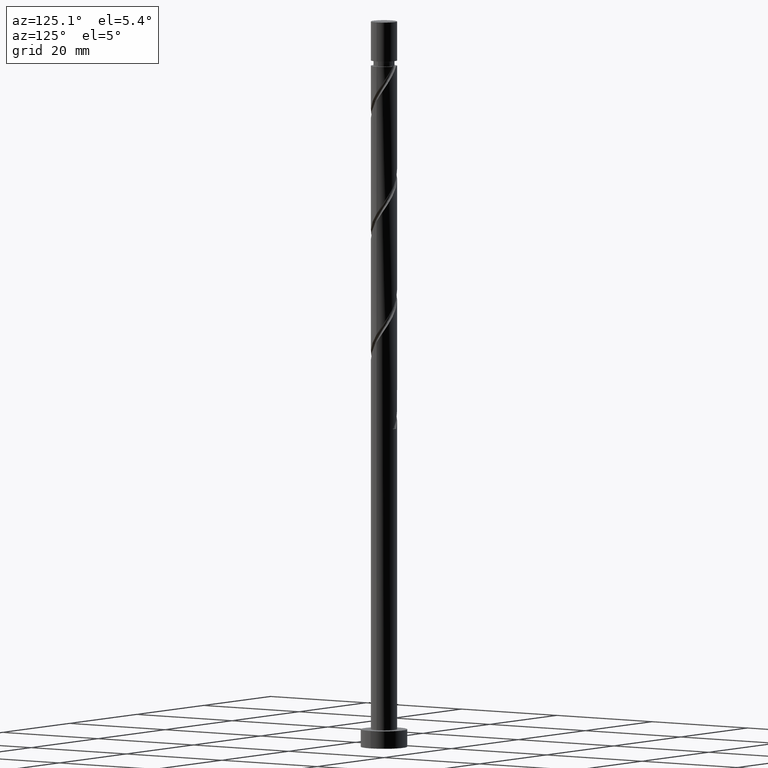
[diagram: clean part render]
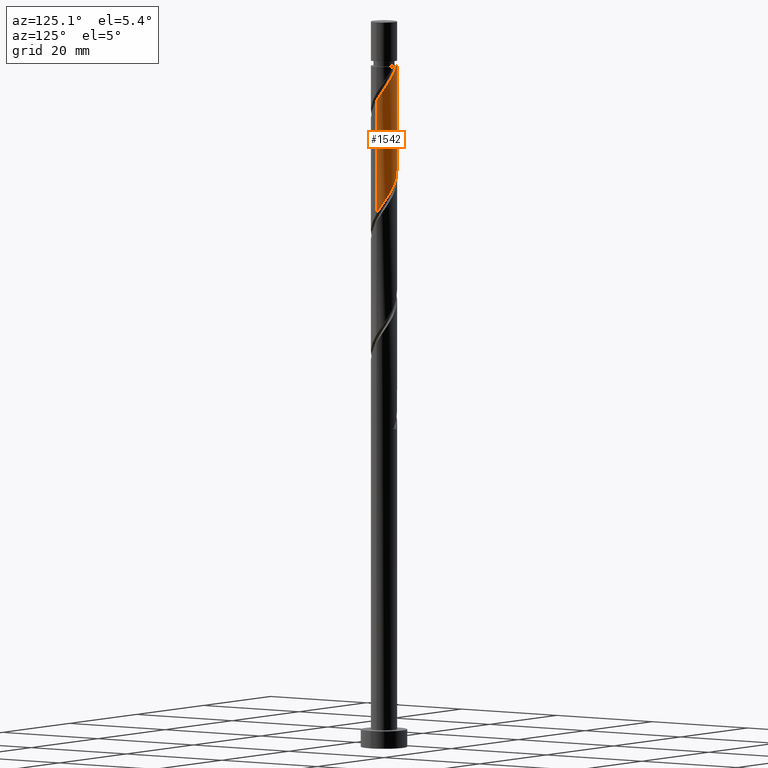
[diagram: same view with one face highlighted and labeled with its STEP entity id]
A machine part, auxiliary view. The second image highlights one B-rep face of the part: STEP entity #1542.
In plain terms, the highlighted cylindrical surface (edge-blend (fillet) strip) has radius 2.25 mm, axis along (-0, -0, -1).
Its self-contained STEP definition (entity closure, byte-faithful):
#11 = EDGE_CURVE ( 'NONE', #1232, #915, #1538, .T. ) ;
#15 = CARTESIAN_POINT ( 'NONE',  ( 1.258056147528826552, 1.899155269134960244, 114.7716720126301482 ) ) ;
#20 = ORIENTED_EDGE ( 'NONE', *, *, #1420, .T. ) ;
#21 = CARTESIAN_POINT ( 'NONE',  ( -2.249999999999998668, -1.454330969970965709E-15, 102.4156411207671056 ) ) ;
#24 = CARTESIAN_POINT ( 'NONE',  ( 1.520704948810361445, 1.658299266918878301, 114.2508386792968338 ) ) ;
#30 = CARTESIAN_POINT ( 'NONE',  ( 2.249999999999998224, 3.118565378906812879E-15, 91.99897445410041996 ) ) ;
#94 = LINE ( 'NONE', #563, #1230 ) ;
#102 = CARTESIAN_POINT ( 'NONE',  ( -2.249999999999998668, -1.454330969970965511E-15, 102.4156411207671056 ) ) ;
#125 = CARTESIAN_POINT ( 'NONE',  ( -2.249999999999999112, 0.2261335084333204459, 102.0813365453592496 ) ) ;
#134 = CARTESIAN_POINT ( 'NONE',  ( 0.4477443466979795783, 2.204999999999998295, 96.54250534596349098 ) ) ;
#150 = CARTESIAN_POINT ( 'NONE',  ( -1.258056147528822999, 1.899155269134957136, 99.14667201263011975 ) ) ;
#153 = CARTESIAN_POINT ( 'NONE',  ( 0.6096112438530373323, 2.194964723631363412, 115.8133386792968622 ) ) ;
#207 = DIRECTION ( 'NONE',  ( -0.000000000000000000, -0.000000000000000000, -1.000000000000000000 ) ) ;
#222 = VECTOR ( 'NONE', #293, 1000.000000000000000 ) ;
#223 = CARTESIAN_POINT ( 'NONE',  ( -0.09850665578237585707, 2.275915737760237256, 116.8550053459635052 ) ) ;
#239 = CARTESIAN_POINT ( 'NONE',  ( 0.7969820376135817730, 2.134084262239763774, 96.02167201263011975 ) ) ;
#246 = CARTESIAN_POINT ( 'NONE',  ( -1.783353750091892564, 1.417443264702794803, 100.1883386792968196 ) ) ;
#293 = DIRECTION ( 'NONE',  ( -0.000000000000000000, -0.000000000000000000, -1.000000000000000000 ) ) ;
#330 = AXIS2_PLACEMENT_3D ( 'NONE', #344, #207, #936 ) ;
#344 = CARTESIAN_POINT ( 'NONE',  ( 0.000000000000000000, 0.000000000000000000, 117.3758386792968196 ) ) ;
#358 = ORIENTED_EDGE ( 'NONE', *, *, #884, .T. ) ;
#362 = CARTESIAN_POINT ( 'NONE',  ( -0.9338336956909289999, 2.047059996383158609, 98.62583867929681958 ) ) ;
#372 = CARTESIAN_POINT ( 'NONE',  ( 2.194964723631358972, 0.6096112438530348898, 92.89667201263016238 ) ) ;
#451 = EDGE_CURVE ( 'NONE', #1081, #1276, #1301, .T. ) ;
#461 = CARTESIAN_POINT ( 'NONE',  ( 0.000000000000000000, 0.000000000000000000, 125.0000000000000000 ) ) ;
#478 = CARTESIAN_POINT ( 'NONE',  ( 2.205000000000003180, 0.4477443466979790787, 112.1675053459635052 ) ) ;
#489 = CARTESIAN_POINT ( 'NONE',  ( 2.249999999999999112, 0.1281909092544719631, 92.18848554330772060 ) ) ;
#505 = CARTESIAN_POINT ( 'NONE',  ( 2.047059996383158609, 0.9338336956909285558, 93.41750534596353361 ) ) ;
#507 = CARTESIAN_POINT ( 'NONE',  ( 0.9338336956909318864, 2.047059996383162161, 115.2925053459634910 ) ) ;
#513 = CARTESIAN_POINT ( 'NONE',  ( 1.658299266918875858, 1.520704948810357671, 94.45917201263014817 ) ) ;
#524 = CARTESIAN_POINT ( 'NONE',  ( 1.958719006165832832, 1.107212651158189454, 113.2091720126301908 ) ) ;
#563 = CARTESIAN_POINT ( 'NONE',  ( 2.250000000000000000, 2.755455298081543792E-16, 125.0000000000000000 ) ) ;
#581 = CYLINDRICAL_SURFACE ( 'NONE', #1432, 2.250000000000000000 ) ;
#587 = ORIENTED_EDGE ( 'NONE', *, *, #1054, .F. ) ;
#595 = CARTESIAN_POINT ( 'NONE',  ( -2.134084262239763774, 0.7969820376135814399, 101.2300053459634626 ) ) ;
#624 = CARTESIAN_POINT ( 'NONE',  ( 0.09850665578237670361, 2.275915737760233259, 97.06333867929680537 ) ) ;
#661 = ORIENTED_EDGE ( 'NONE', *, *, #11, .F. ) ;
#755 = EDGE_LOOP ( 'NONE', ( #1082, #20, #587, #661, #358 ) ) ;
#804 = DIRECTION ( 'NONE',  ( -0.000000000000000000, -0.000000000000000000, -1.000000000000000000 ) ) ;
#812 = CARTESIAN_POINT ( 'NONE',  ( 2.250000000000002220, 7.196689335938737890E-16, 111.5027029044932476 ) ) ;
#842 = CARTESIAN_POINT ( 'NONE',  ( -2.204999999999998295, 0.4477443466979791342, 101.7508386792968338 ) ) ;
#884 = EDGE_CURVE ( 'NONE', #1232, #1276, #1252, .T. ) ;
#906 =( BOUNDED_CURVE ( )  B_SPLINE_CURVE ( 2, ( #21, #125, #842, #595, #1110, #246, #1360, #150, #362, #962, #1469, #624, #134, #239, #1223, #999, #513, #1118, #505, #372, #1478, #489, #30 ),
 .UNSPECIFIED., .F., .T. ) 
 B_SPLINE_CURVE_WITH_KNOTS ( ( 3, 2, 2, 2, 2, 2, 2, 2, 2, 2, 2, 3 ),
 ( 0.4295322023138550827, 0.4375000000000000000, 0.4500000000000000111, 0.4625000000000000222, 0.4749999999999999778, 0.4874999999999999889, 0.5000000000000000000, 0.5124999999999999556, 0.5250000000000000222, 0.5374999999999999778, 0.5500000000000000444, 0.5545322023138552492 ),
 .UNSPECIFIED. ) 
 CURVE ( )  GEOMETRIC_REPRESENTATION_ITEM ( )  RATIONAL_B_SPLINE_CURVE ( ( 0.9039174447099334042, 0.9019565955404627022, 0.9090909090909110590, 0.8978984914501272341, 0.9090909090909110590, 0.8978984914501272341, 0.9090909090909110590, 0.8978984914501272341, 0.9090909090909110590, 0.8978984914501272341, 0.9090909090909110590, 0.8978984914501272341, 0.9090909090909110590, 0.8978984914501272341, 0.9090909090909110590, 0.8978984914501272341, 0.9090909090909110590, 0.8978984914501272341, 0.9090909090909110590, 0.8978984914501272341, 0.9090909090909110590, 0.9050328050005754799, 0.9039174447099332932 ) ) 
 REPRESENTATION_ITEM ( '' )  );
#915 = VERTEX_POINT ( 'NONE', #102 ) ;
#936 = DIRECTION ( 'NONE',  ( -1.000000000000000000, 0.000000000000000000, 0.000000000000000000 ) ) ;
#959 = CARTESIAN_POINT ( 'NONE',  ( 2.134084262239768659, 0.7969820376135818840, 112.6883386792968054 ) ) ;
#962 = CARTESIAN_POINT ( 'NONE',  ( -0.6096112438530351119, 2.194964723631358972, 98.10500534596346256 ) ) ;
#972 = CARTESIAN_POINT ( 'NONE',  ( 2.250000000000002220, 7.196689335938738877E-16, 111.5027029044932334 ) ) ;
#975 = DIRECTION ( 'NONE',  ( -0.000000000000000000, -0.000000000000000000, -1.000000000000000000 ) ) ;
#980 = CARTESIAN_POINT ( 'NONE',  ( 0.2555522940353308625, 2.235440230695800778, 116.3341720126302050 ) ) ;
#999 = CARTESIAN_POINT ( 'NONE',  ( 1.417443264702794803, 1.783353750091892564, 94.98000534596349098 ) ) ;
#1054 = EDGE_CURVE ( 'NONE', #915, #1246, #906, .T. ) ;
#1081 = VERTEX_POINT ( 'NONE', #972 ) ;
#1082 = ORIENTED_EDGE ( 'NONE', *, *, #451, .F. ) ;
#1083 = CARTESIAN_POINT ( 'NONE',  ( -2.249999999999997780, 0.000000000000000000, 117.3758386792968196 ) ) ;
#1103 = CARTESIAN_POINT ( 'NONE',  ( 1.783353750091897227, 1.417443264702797245, 113.7300053459635194 ) ) ;
#1110 = CARTESIAN_POINT ( 'NONE',  ( -1.958719006165828169, 1.107212651158188343, 100.7091720126301624 ) ) ;
#1118 = CARTESIAN_POINT ( 'NONE',  ( 1.899155269134957136, 1.258056147528822777, 93.93833867929680537 ) ) ;
#1160 = CARTESIAN_POINT ( 'NONE',  ( -0.4477443466980058351, 2.204999999999991189, 117.3758386792969048 ) ) ;
#1191 = CARTESIAN_POINT ( 'NONE',  ( 2.250000000000001776, 0.2261335084333267187, 111.8370074799010894 ) ) ;
#1223 = CARTESIAN_POINT ( 'NONE',  ( 1.107212651158188788, 1.958719006165828169, 95.50083867929680537 ) ) ;
#1230 = VECTOR ( 'NONE', #804, 1000.000000000000000 ) ;
#1232 = VERTEX_POINT ( 'NONE', #1083 ) ;
#1246 = VERTEX_POINT ( 'NONE', #1572 ) ;
#1252 = CIRCLE ( 'NONE', #330, 2.249999999999997780 ) ;
#1276 = VERTEX_POINT ( 'NONE', #1160 ) ;
#1301 =( BOUNDED_CURVE ( )  B_SPLINE_CURVE ( 2, ( #812, #1191, #478, #959, #524, #1103, #24, #15, #507, #153, #980, #223, #1569 ),
 .UNSPECIFIED., .F., .T. ) 
 B_SPLINE_CURVE_WITH_KNOTS ( ( 3, 2, 2, 2, 2, 2, 3 ),
 ( 0.6795322023138553602, 0.6875000000000000000, 0.6999999999999999556, 0.7125000000000000222, 0.7249999999999999778, 0.7375000000000000444, 0.7500000000000000000 ),
 .UNSPECIFIED. ) 
 CURVE ( )  GEOMETRIC_REPRESENTATION_ITEM ( )  RATIONAL_B_SPLINE_CURVE ( ( 0.9039174447099408427, 0.9019565955404703628, 0.9090909090909186085, 0.8978984914501346726, 0.9090909090909186085, 0.8978984914501346726, 0.9090909090909186085, 0.8978984914501346726, 0.9090909090909186085, 0.8978984914501346726, 0.9090909090909186085, 0.8978984914501346726, 0.9090909090909186085 ) ) 
 REPRESENTATION_ITEM ( '' )  );
#1329 = FACE_OUTER_BOUND ( 'NONE', #755, .T. ) ;
#1360 = CARTESIAN_POINT ( 'NONE',  ( -1.520704948810358115, 1.658299266918875858, 99.66750534596349098 ) ) ;
#1386 = CARTESIAN_POINT ( 'NONE',  ( -2.250000000000000000, 0.000000000000000000, 125.0000000000000000 ) ) ;
#1420 = EDGE_CURVE ( 'NONE', #1081, #1246, #94, .T. ) ;
#1432 = AXIS2_PLACEMENT_3D ( 'NONE', #461, #975, #1445 ) ;
#1445 = DIRECTION ( 'NONE',  ( -1.000000000000000000, 0.000000000000000000, 0.000000000000000000 ) ) ;
#1469 = CARTESIAN_POINT ( 'NONE',  ( -0.2555522940353292527, 2.235440230695796782, 97.58417201263014817 ) ) ;
#1478 = CARTESIAN_POINT ( 'NONE',  ( 2.235440230695796782, 0.2555522940353288086, 92.37583867929683379 ) ) ;
#1538 = LINE ( 'NONE', #1386, #222 ) ;
#1542 = ADVANCED_FACE ( 'NONE', ( #1329 ), #581, .T. ) ;
#1569 = CARTESIAN_POINT ( 'NONE',  ( -0.4477443466980058906, 2.204999999999991633, 117.3758386792969048 ) ) ;
#1572 = CARTESIAN_POINT ( 'NONE',  ( 2.249999999999998224, 3.118565378906812879E-15, 91.99897445410041996 ) ) ;